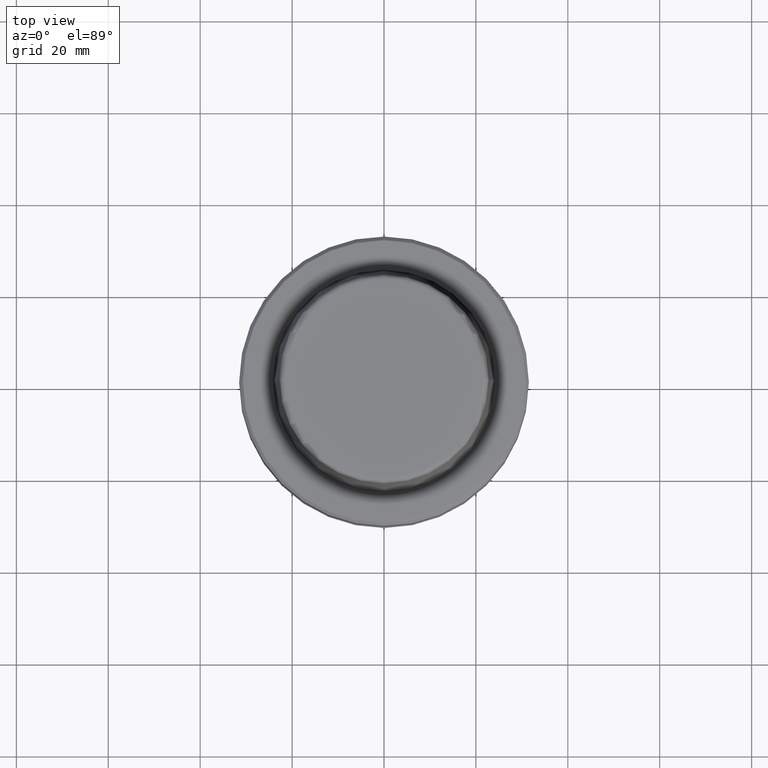
[diagram: clean part render]
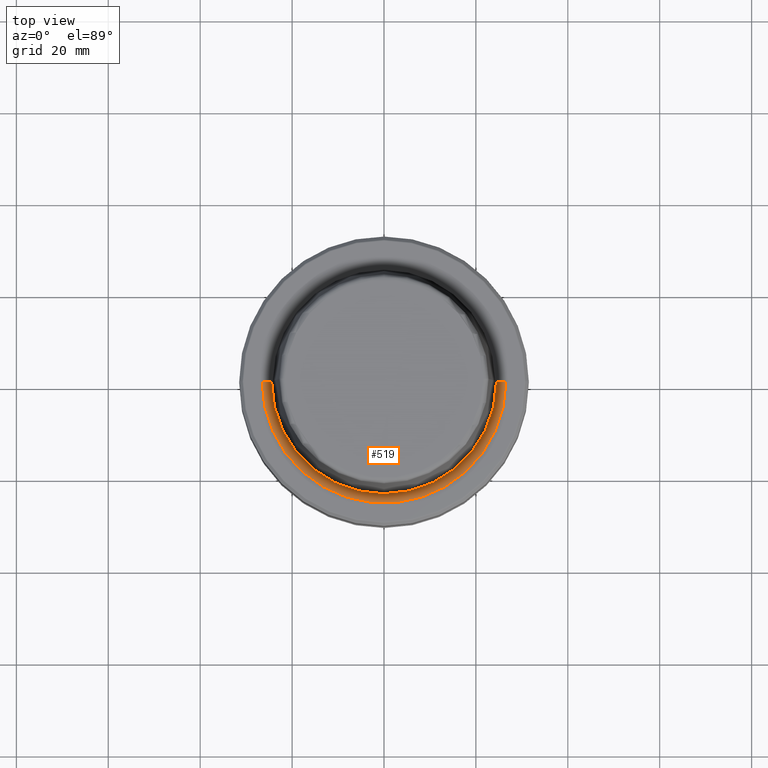
[diagram: same view with one face highlighted and labeled with its STEP entity id]
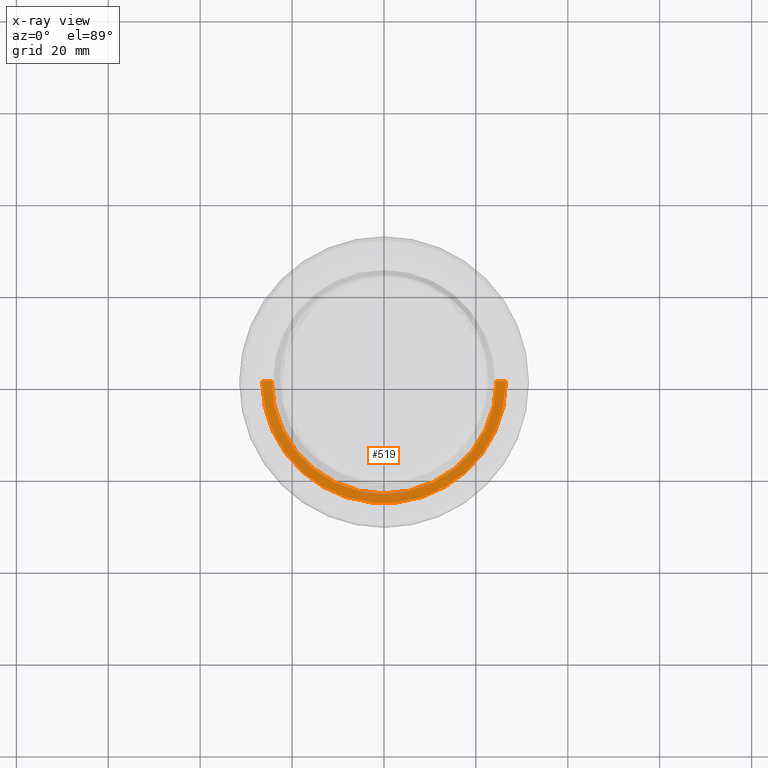
[diagram: x-ray of the same camera — body ghosted, the highlighted face saturated]
A machine part, top view. The second image highlights one B-rep face of the part: STEP entity #519.
The next image is the same camera in x-ray: the body ghosted, the highlighted face saturated — about 0% of this face is hidden behind the body in this view.
In plain terms, the highlighted conical surface has half-angle 80 deg.
Its self-contained STEP definition (entity closure, byte-faithful):
#110 = CARTESIAN_POINT ( 'NONE',  ( 26.52499999999999900, 0.0000000000000000000, 0.0000000000000000000 ) ) ;
#119 = DIRECTION ( 'NONE',  ( -0.0000000000000000000, -0.0000000000000000000, 1.000000000000000000 ) ) ;
#142 = AXIS2_PLACEMENT_3D ( 'NONE', #918, #725, #362 ) ;
#153 = CARTESIAN_POINT ( 'NONE',  ( -26.52499999999999900, 3.248375634738354300E-015, 0.0000000000000000000 ) ) ;
#172 = DIRECTION ( 'NONE',  ( 0.9848077530122074700, 0.0000000000000000000, 0.1736481776669334700 ) ) ;
#177 = VECTOR ( 'NONE', #253, 1000.000000000000200 ) ;
#193 = CARTESIAN_POINT ( 'NONE',  ( -24.47682408883346700, 3.122961031053313900E-015, -0.3611486743758107700 ) ) ;
#213 = LINE ( 'NONE', #110, #522 ) ;
#250 = CIRCLE ( 'NONE', #539, 26.52499999999999900 ) ;
#253 = DIRECTION ( 'NONE',  ( -0.9848077530122074700, 1.206041662501897100E-016, 0.1736481776669334700 ) ) ;
#257 = EDGE_CURVE ( 'NONE', #588, #845, #1210, .T. ) ;
#362 = DIRECTION ( 'NONE',  ( 1.000000000000000000, 0.0000000000000000000, 0.0000000000000000000 ) ) ;
#412 = EDGE_CURVE ( 'NONE', #845, #541, #213, .T. ) ;
#472 = DIRECTION ( 'NONE',  ( 1.000000000000000000, 0.0000000000000000000, 0.0000000000000000000 ) ) ;
#495 = CARTESIAN_POINT ( 'NONE',  ( 26.52499999999999900, 0.0000000000000000000, 0.0000000000000000000 ) ) ;
#519 = ADVANCED_FACE ( 'NONE', ( #640 ), #620, .F. ) ;
#522 = VECTOR ( 'NONE', #172, 1000.000000000000200 ) ;
#536 = LINE ( 'NONE', #1233, #177 ) ;
#539 = AXIS2_PLACEMENT_3D ( 'NONE', #704, #119, #801 ) ;
#541 = VERTEX_POINT ( 'NONE', #495 ) ;
#588 = VERTEX_POINT ( 'NONE', #193 ) ;
#613 = AXIS2_PLACEMENT_3D ( 'NONE', #984, #1086, #472 ) ;
#620 = CONICAL_SURFACE ( 'NONE', #142, 26.52499999999999900, 1.396263401595460500 ) ;
#629 = ORIENTED_EDGE ( 'NONE', *, *, #1139, .T. ) ;
#640 = FACE_OUTER_BOUND ( 'NONE', #840, .T. ) ;
#704 = CARTESIAN_POINT ( 'NONE',  ( 0.0000000000000000000, 0.0000000000000000000, 0.0000000000000000000 ) ) ;
#725 = DIRECTION ( 'NONE',  ( -0.0000000000000000000, -0.0000000000000000000, 1.000000000000000000 ) ) ;
#752 = VERTEX_POINT ( 'NONE', #153 ) ;
#777 = ORIENTED_EDGE ( 'NONE', *, *, #257, .F. ) ;
#795 = EDGE_CURVE ( 'NONE', #588, #752, #536, .T. ) ;
#801 = DIRECTION ( 'NONE',  ( 1.000000000000000000, 0.0000000000000000000, 0.0000000000000000000 ) ) ;
#840 = EDGE_LOOP ( 'NONE', ( #777, #995, #629, #977 ) ) ;
#845 = VERTEX_POINT ( 'NONE', #1245 ) ;
#918 = CARTESIAN_POINT ( 'NONE',  ( 0.0000000000000000000, 0.0000000000000000000, 0.0000000000000000000 ) ) ;
#977 = ORIENTED_EDGE ( 'NONE', *, *, #412, .F. ) ;
#984 = CARTESIAN_POINT ( 'NONE',  ( 0.0000000000000000000, 0.0000000000000000000, -0.3611486743758107700 ) ) ;
#995 = ORIENTED_EDGE ( 'NONE', *, *, #795, .T. ) ;
#1086 = DIRECTION ( 'NONE',  ( -0.0000000000000000000, -0.0000000000000000000, 1.000000000000000000 ) ) ;
#1139 = EDGE_CURVE ( 'NONE', #752, #541, #250, .T. ) ;
#1210 = CIRCLE ( 'NONE', #613, 24.47682408883346700 ) ;
#1233 = CARTESIAN_POINT ( 'NONE',  ( -26.52499999999999900, 3.248375634738354300E-015, 0.0000000000000000000 ) ) ;
#1245 = CARTESIAN_POINT ( 'NONE',  ( 24.47682408883346700, 0.0000000000000000000, -0.3611486743758107700 ) ) ;